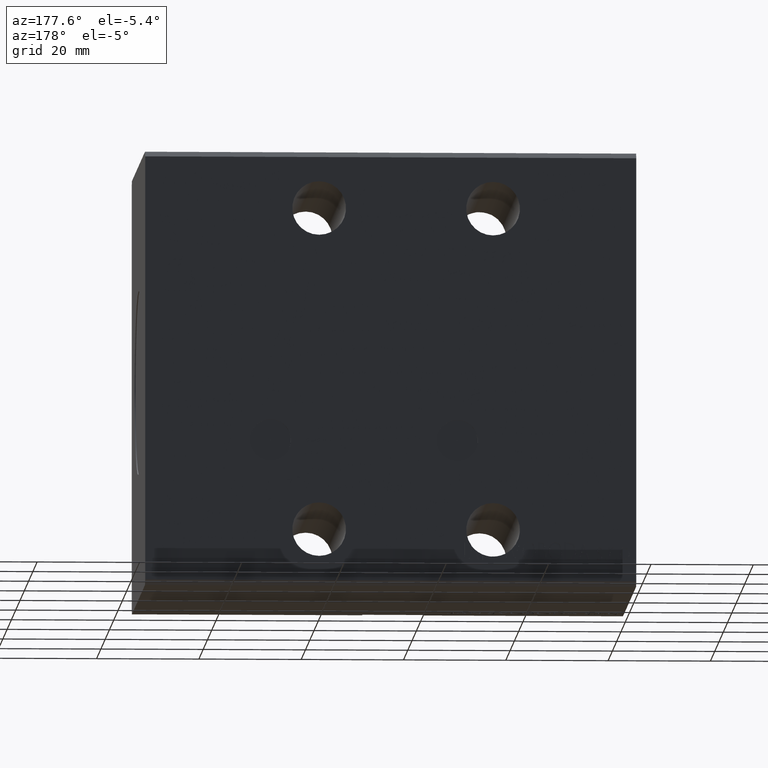
[diagram: clean part render]
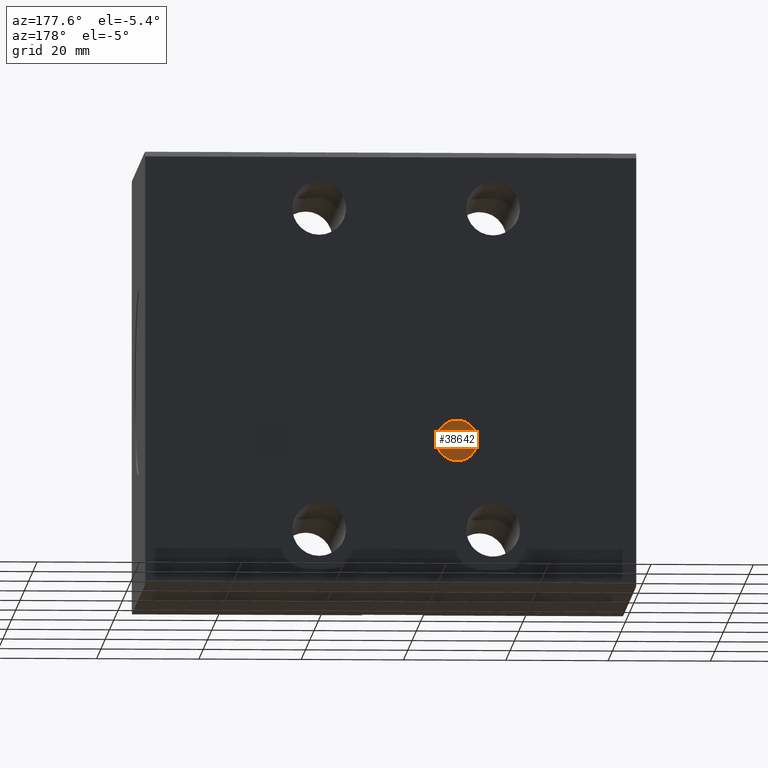
[diagram: same view with one face highlighted and labeled with its STEP entity id]
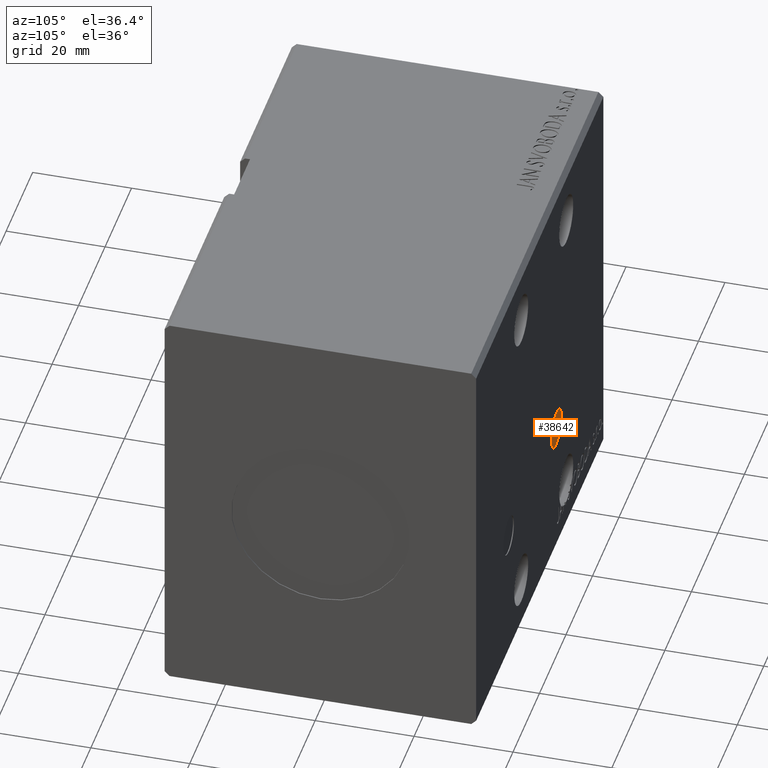
[diagram: same view with one face highlighted and labeled with its STEP entity id]
A machine part, auxiliary view. The second image highlights one B-rep face of the part: STEP entity #38642.
A second angle (auxiliary view) of the same face is appended — the face is thin or edge-on in the first view.
In plain terms, the highlighted planar face has unit normal (0, 1, 0).
Its self-contained STEP definition (entity closure, byte-faithful):
#1815 = DIRECTION ( 'NONE',  ( 0.000000000000000000, 0.000000000000000000, 1.000000000000000000 ) ) ;
#2605 = VERTEX_POINT ( 'NONE', #26792 ) ;
#5061 = AXIS2_PLACEMENT_3D ( 'NONE', #26995, #30477, #17943 ) ;
#12413 = ORIENTED_EDGE ( 'NONE', *, *, #38546, .T. ) ;
#14464 = FACE_OUTER_BOUND ( 'NONE', #25412, .T. ) ;
#14500 = VERTEX_POINT ( 'NONE', #28460 ) ;
#17943 = DIRECTION ( 'NONE',  ( 0.000000000000000000, 0.000000000000000000, 1.000000000000000000 ) ) ;
#19507 = AXIS2_PLACEMENT_3D ( 'NONE', #36850, #37056, #31291 ) ;
#22756 = AXIS2_PLACEMENT_3D ( 'NONE', #24202, #33649, #1815 ) ;
#23907 = PLANE ( 'NONE',  #19507 ) ;
#24202 = CARTESIAN_POINT ( 'NONE',  ( 35.00000000000000000, 31.30000000000001492, -14.00000000000000888 ) ) ;
#25412 = EDGE_LOOP ( 'NONE', ( #12413, #29343 ) ) ;
#26792 = CARTESIAN_POINT ( 'NONE',  ( 35.00000000000000000, 31.30000000000001492, -18.00000000000001066 ) ) ;
#26995 = CARTESIAN_POINT ( 'NONE',  ( 35.00000000000000000, 31.30000000000001492, -14.00000000000000888 ) ) ;
#28051 = CIRCLE ( 'NONE', #5061, 4.000000000000000000 ) ;
#28460 = CARTESIAN_POINT ( 'NONE',  ( 35.00000000000000000, 31.30000000000001492, -10.00000000000000888 ) ) ;
#29343 = ORIENTED_EDGE ( 'NONE', *, *, #36911, .T. ) ;
#30477 = DIRECTION ( 'NONE',  ( 0.000000000000000000, 1.000000000000000000, 0.000000000000000000 ) ) ;
#31291 = DIRECTION ( 'NONE',  ( 0.000000000000000000, -0.000000000000000000, 1.000000000000000000 ) ) ;
#32585 = CIRCLE ( 'NONE', #22756, 4.000000000000000000 ) ;
#33649 = DIRECTION ( 'NONE',  ( 0.000000000000000000, 1.000000000000000000, 0.000000000000000000 ) ) ;
#36850 = CARTESIAN_POINT ( 'NONE',  ( 35.00000000000000000, 31.30000000000001492, -14.00000000000000888 ) ) ;
#36911 = EDGE_CURVE ( 'NONE', #2605, #14500, #32585, .T. ) ;
#37056 = DIRECTION ( 'NONE',  ( 0.000000000000000000, 1.000000000000000000, 0.000000000000000000 ) ) ;
#38546 = EDGE_CURVE ( 'NONE', #14500, #2605, #28051, .T. ) ;
#38642 = ADVANCED_FACE ( 'NONE', ( #14464 ), #23907, .T. ) ;